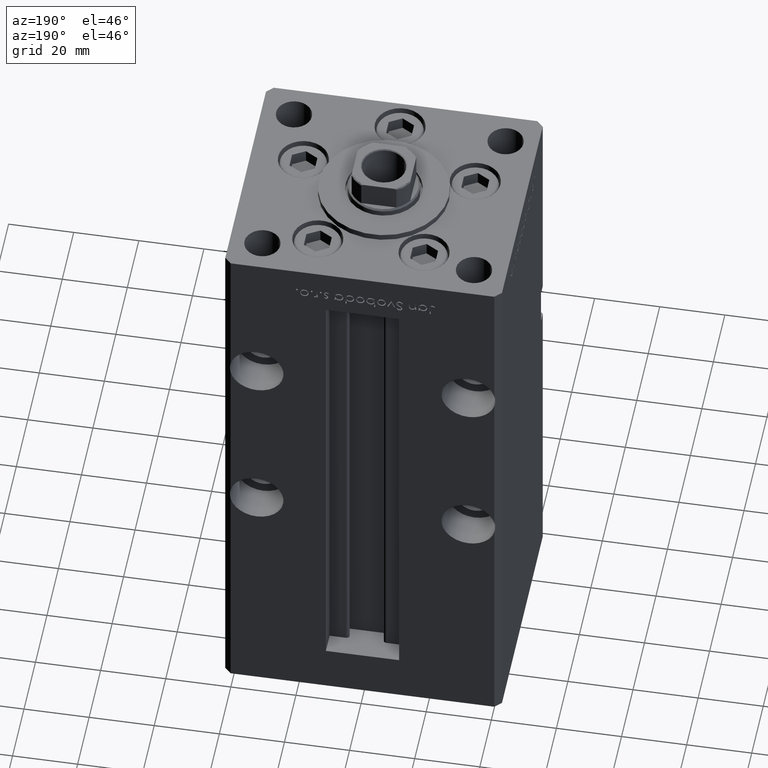
[diagram: clean part render]
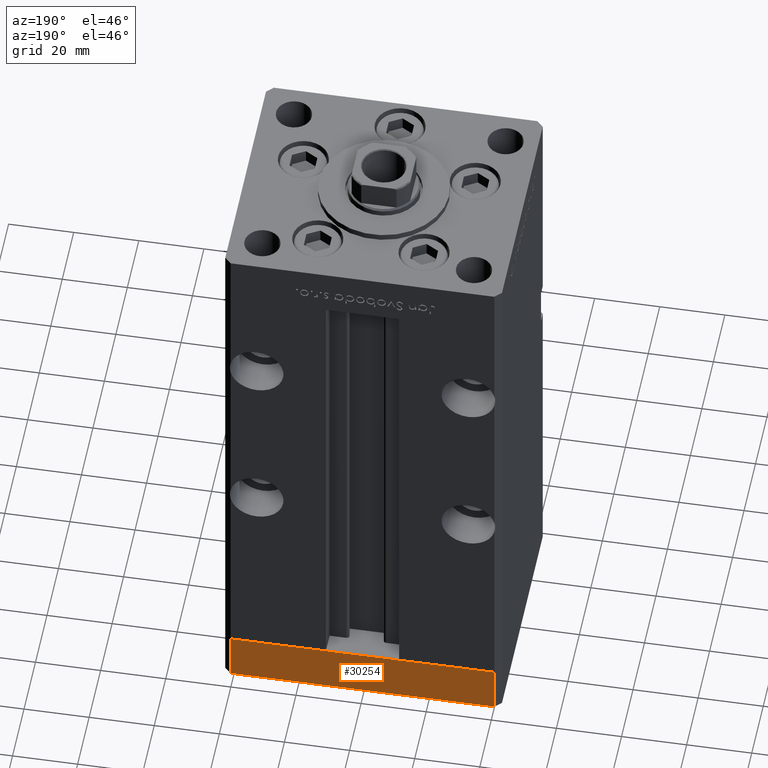
[diagram: same view with one face highlighted and labeled with its STEP entity id]
A machine part, auxiliary view. The second image highlights one B-rep face of the part: STEP entity #30254.
In plain terms, the highlighted planar face has unit normal (-0, 1, 0).
Its self-contained STEP definition (entity closure, byte-faithful):
#2461 = PLANE ( 'NONE',  #39460 ) ;
#3335 = VECTOR ( 'NONE', #27867, 1000.000000000000000 ) ;
#3382 = VECTOR ( 'NONE', #23567, 1000.000000000000000 ) ;
#4568 = ORIENTED_EDGE ( 'NONE', *, *, #30075, .F. ) ;
#6159 = ORIENTED_EDGE ( 'NONE', *, *, #33061, .T. ) ;
#7013 = VERTEX_POINT ( 'NONE', #50045 ) ;
#7703 = LINE ( 'NONE', #44535, #3335 ) ;
#9075 = VERTEX_POINT ( 'NONE', #35662 ) ;
#10627 = ORIENTED_EDGE ( 'NONE', *, *, #15693, .T. ) ;
#13086 = CARTESIAN_POINT ( 'NONE',  ( 40.49999999999991473, 37.50000000000000711, -15.00000000000000000 ) ) ;
#15693 = EDGE_CURVE ( 'NONE', #32095, #35580, #48313, .T. ) ;
#15767 = DIRECTION ( 'NONE',  ( 0.000000000000000000, 0.000000000000000000, 1.000000000000000000 ) ) ;
#16029 = CARTESIAN_POINT ( 'NONE',  ( -40.50000000000000711, 37.49999999999997868, -15.00000000000000000 ) ) ;
#16774 = CARTESIAN_POINT ( 'NONE',  ( -40.50000000000000711, 37.49999999999997868, -15.00000000000000000 ) ) ;
#18718 = EDGE_CURVE ( 'NONE', #7013, #9075, #51543, .T. ) ;
#18995 = CARTESIAN_POINT ( 'NONE',  ( 40.49999999999991473, 37.50000000000000711, -15.00000000000000000 ) ) ;
#23567 = DIRECTION ( 'NONE',  ( 0.000000000000000000, 0.000000000000000000, 1.000000000000000000 ) ) ;
#25186 = DIRECTION ( 'NONE',  ( -1.000000000000000000, -3.426614273534436165E-16, 0.000000000000000000 ) ) ;
#27478 = CARTESIAN_POINT ( 'NONE',  ( -40.50000000000000711, 37.49999999999997868, 0.000000000000000000 ) ) ;
#27867 = DIRECTION ( 'NONE',  ( -1.000000000000000000, -3.426614273534436165E-16, 0.000000000000000000 ) ) ;
#30075 = EDGE_CURVE ( 'NONE', #9075, #35580, #7703, .T. ) ;
#30084 = VECTOR ( 'NONE', #25186, 1000.000000000000000 ) ;
#30254 = ADVANCED_FACE ( 'NONE', ( #46843 ), #2461, .T. ) ;
#32095 = VERTEX_POINT ( 'NONE', #16774 ) ;
#33061 = EDGE_CURVE ( 'NONE', #7013, #32095, #36767, .T. ) ;
#35580 = VERTEX_POINT ( 'NONE', #27478 ) ;
#35662 = CARTESIAN_POINT ( 'NONE',  ( 40.49999999999991473, 37.50000000000000711, 0.000000000000000000 ) ) ;
#36767 = LINE ( 'NONE', #13086, #30084 ) ;
#39460 = AXIS2_PLACEMENT_3D ( 'NONE', #39588, #42813, #43607 ) ;
#39575 = EDGE_LOOP ( 'NONE', ( #4568, #46223, #6159, #10627 ) ) ;
#39588 = CARTESIAN_POINT ( 'NONE',  ( 40.49999999999991473, 37.50000000000000711, -15.00000000000000000 ) ) ;
#42813 = DIRECTION ( 'NONE',  ( -3.426614273534436165E-16, 1.000000000000000000, 0.000000000000000000 ) ) ;
#43607 = DIRECTION ( 'NONE',  ( -1.000000000000000000, -3.426614273534436165E-16, 0.000000000000000000 ) ) ;
#44535 = CARTESIAN_POINT ( 'NONE',  ( 40.49999999999991473, 37.50000000000000711, 0.000000000000000000 ) ) ;
#46223 = ORIENTED_EDGE ( 'NONE', *, *, #18718, .F. ) ;
#46843 = FACE_OUTER_BOUND ( 'NONE', #39575, .T. ) ;
#48313 = LINE ( 'NONE', #16029, #3382 ) ;
#50045 = CARTESIAN_POINT ( 'NONE',  ( 40.49999999999991473, 37.50000000000000711, -15.00000000000000000 ) ) ;
#50591 = VECTOR ( 'NONE', #15767, 1000.000000000000000 ) ;
#51543 = LINE ( 'NONE', #18995, #50591 ) ;